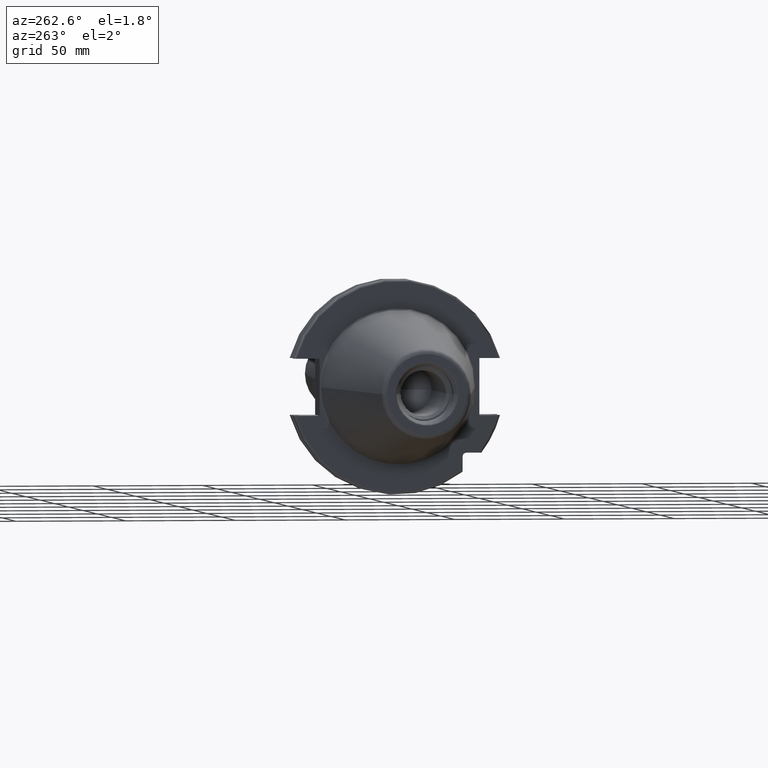
[diagram: clean part render]
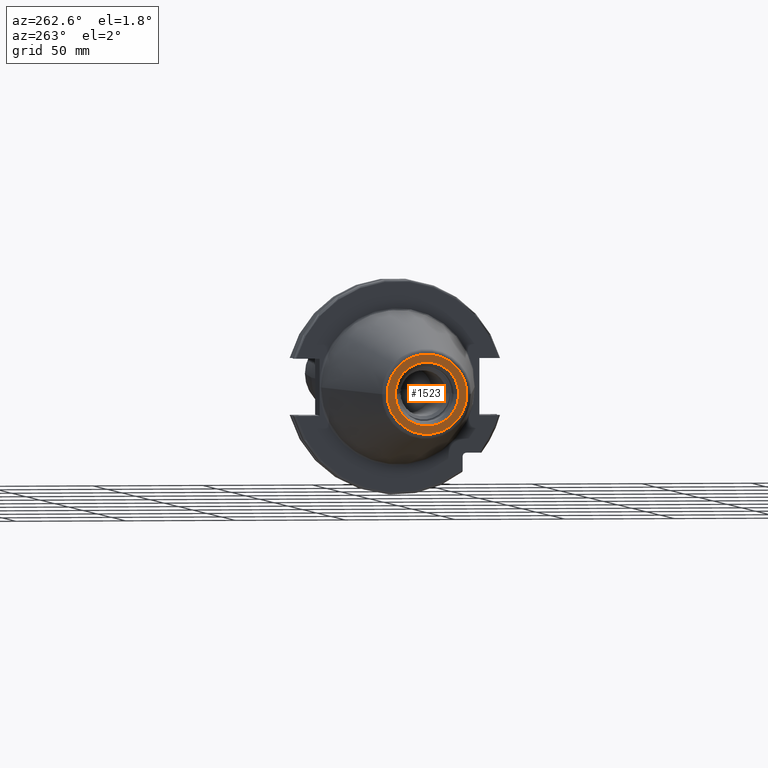
[diagram: same view with one face highlighted and labeled with its STEP entity id]
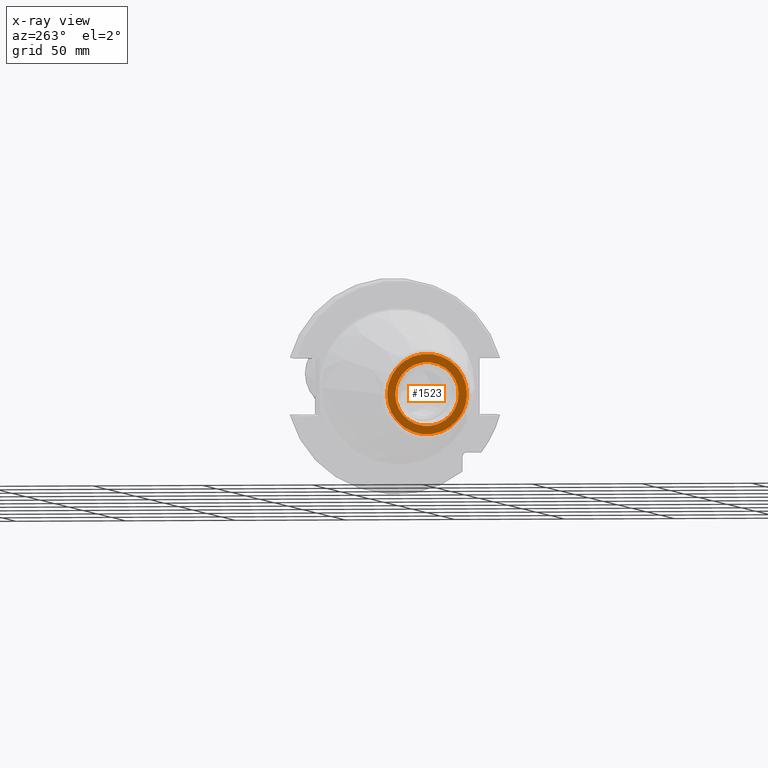
[diagram: x-ray of the same camera — body ghosted, the highlighted face saturated]
A machine part, auxiliary view. The second image highlights one B-rep face of the part: STEP entity #1523.
The next image is the same camera in x-ray: the body ghosted, the highlighted face saturated — about 0% of this face is hidden behind the body in this view.
In plain terms, the highlighted planar face has unit normal (1, 0, 0).
Its self-contained STEP definition (entity closure, byte-faithful):
#2=CARTESIAN_POINT('',(-1.016E2,0.E0,0.E0));
#3=DIRECTION('',(-1.E0,0.E0,0.E0));
#4=DIRECTION('',(0.E0,1.E0,0.E0));
#5=AXIS2_PLACEMENT_3D('',#2,#3,#4);
#7=CARTESIAN_POINT('',(-1.016E2,0.E0,0.E0));
#8=DIRECTION('',(1.E0,0.E0,0.E0));
#9=DIRECTION('',(0.E0,1.E0,0.E0));
#10=AXIS2_PLACEMENT_3D('',#7,#8,#9);
#12=CARTESIAN_POINT('',(-1.016E2,0.E0,0.E0));
#13=DIRECTION('',(1.E0,0.E0,0.E0));
#14=DIRECTION('',(0.E0,1.E0,0.E0));
#15=AXIS2_PLACEMENT_3D('',#12,#13,#14);
#17=CARTESIAN_POINT('',(-1.016E2,0.E0,0.E0));
#18=DIRECTION('',(1.E0,0.E0,0.E0));
#19=DIRECTION('',(0.E0,-1.E0,0.E0));
#20=AXIS2_PLACEMENT_3D('',#17,#18,#19);
#1245=CARTESIAN_POINT('',(-1.016E2,1.816144700117E1,0.E0));
#1247=VERTEX_POINT('',#1245);
#1249=CARTESIAN_POINT('',(-1.016E2,-1.816144700117E1,0.E0));
#1251=VERTEX_POINT('',#1249);
#1308=CARTESIAN_POINT('',(-1.016E2,1.446188021535E1,0.E0));
#1309=CARTESIAN_POINT('',(-1.016E2,-1.446188021535E1,0.E0));
#1310=VERTEX_POINT('',#1308);
#1311=VERTEX_POINT('',#1309);
#1506=CARTESIAN_POINT('',(-1.016E2,0.E0,0.E0));
#1507=DIRECTION('',(1.E0,0.E0,0.E0));
#1508=DIRECTION('',(0.E0,-1.E0,0.E0));
#1509=AXIS2_PLACEMENT_3D('',#1506,#1507,#1508);
#1510=PLANE('',#1509);
#1512=ORIENTED_EDGE('',*,*,#1511,.F.);
#1514=ORIENTED_EDGE('',*,*,#1513,.T.);
#1515=EDGE_LOOP('',(#1512,#1514));
#1516=FACE_OUTER_BOUND('',#1515,.F.);
#1518=ORIENTED_EDGE('',*,*,#1517,.F.);
#1520=ORIENTED_EDGE('',*,*,#1519,.F.);
#1521=EDGE_LOOP('',(#1518,#1520));
#1522=FACE_BOUND('',#1521,.F.);
#1523=ADVANCED_FACE('',(#1516,#1522),#1510,.F.);
#6=CIRCLE('',#5,1.816144700117E1);
#11=CIRCLE('',#10,1.816144700117E1);
#16=CIRCLE('',#15,1.446188021535E1);
#21=CIRCLE('',#20,1.446188021535E1);
#1511=EDGE_CURVE('',#1247,#1251,#6,.T.);
#1513=EDGE_CURVE('',#1247,#1251,#11,.T.);
#1517=EDGE_CURVE('',#1310,#1311,#16,.T.);
#1519=EDGE_CURVE('',#1311,#1310,#21,.T.);